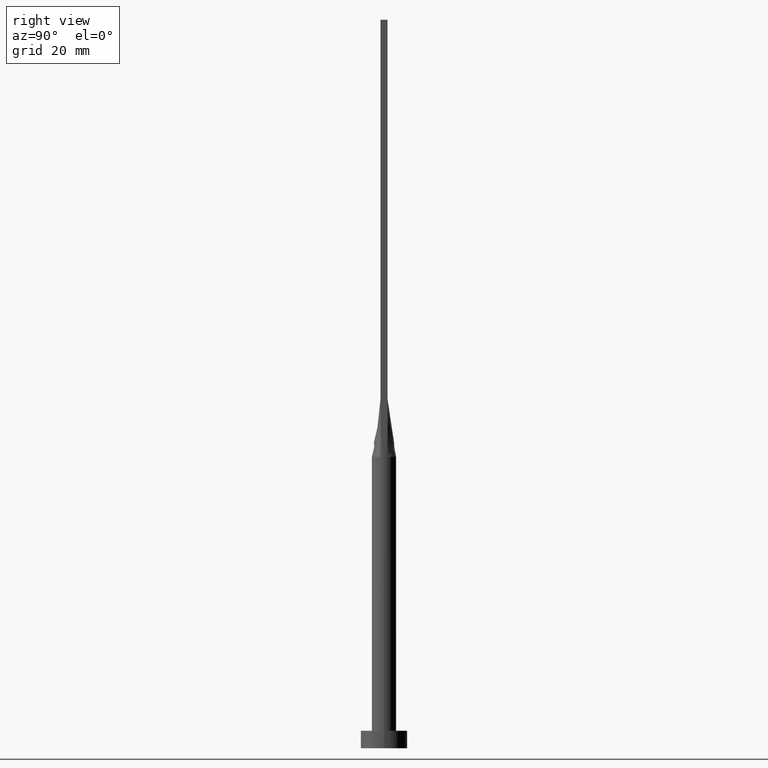
[diagram: clean part render]
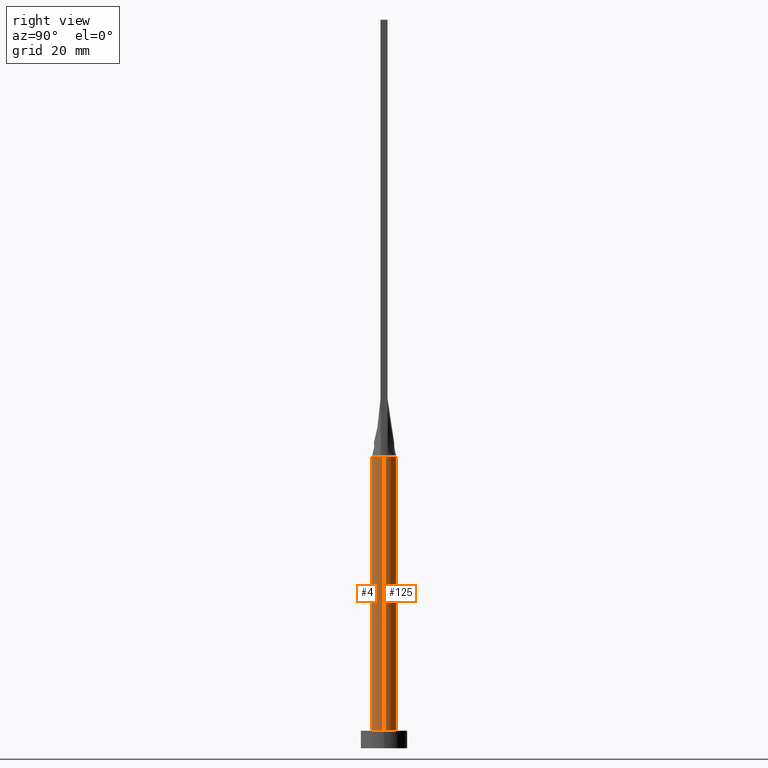
[diagram: same view with one multi-face feature highlighted, each face labeled with its STEP entity id]
A machine part, right view. The highlighted faces form ONE feature: a constant-radius fillet chain: 2 tangent blend faces with common blend radius 2.1 mm. The faces share edges in the B-rep.
Their STEP definitions:
[1] entity #125 (Cylinder):
#9 = CYLINDRICAL_SURFACE ( 'NONE', #352, 2.100000000000000089 ) ;
#24 = DIRECTION ( 'NONE',  ( 1.000000000000000000, 0.000000000000000000, 0.000000000000000000 ) ) ;
#35 = AXIS2_PLACEMENT_3D ( 'NONE', #220, #543, #396 ) ;
#55 = DIRECTION ( 'NONE',  ( 0.000000000000000000, 0.000000000000000000, 1.000000000000000000 ) ) ;
#66 = DIRECTION ( 'NONE',  ( 0.000000000000000000, 0.000000000000000000, 1.000000000000000000 ) ) ;
#79 = EDGE_CURVE ( 'NONE', #366, #359, #267, .T. ) ;
#90 = ORIENTED_EDGE ( 'NONE', *, *, #284, .T. ) ;
#94 = CARTESIAN_POINT ( 'NONE',  ( -0.9765948449220482885, 1.875594675604967509, 49.99999999999999289 ) ) ;
#120 = CARTESIAN_POINT ( 'NONE',  ( 1.878511276496548366, 0.9591670956957804028, 50.00000000000000000 ) ) ;
#125 = ADVANCED_FACE ( 'NONE', ( #513 ), #9, .T. ) ;
#130 = DIRECTION ( 'NONE',  ( -0.000000000000000000, -0.000000000000000000, -1.000000000000000000 ) ) ;
#133 = ORIENTED_EDGE ( 'NONE', *, *, #537, .F. ) ;
#136 = CARTESIAN_POINT ( 'NONE',  ( 0.2565105576742081062, 2.100000000000000533, 50.00000000000001421 ) ) ;
#137 = DIRECTION ( 'NONE',  ( -0.000000000000000000, -0.000000000000000000, -1.000000000000000000 ) ) ;
#141 = EDGE_CURVE ( 'NONE', #374, #366, #294, .T. ) ;
#144 = CARTESIAN_POINT ( 'NONE',  ( 2.100000000000000089, 2.571758278209441957E-16, 3.000000000000000000 ) ) ;
#145 = CIRCLE ( 'NONE', #171, 2.100000000000000089 ) ;
#148 = CARTESIAN_POINT ( 'NONE',  ( -2.100000000000000089, -1.284268198382905442E-16, 50.00000000000000000 ) ) ;
#155 = CARTESIAN_POINT ( 'NONE',  ( -1.952271707612931895, 0.7915068550356629817, 49.99999999999999289 ) ) ;
#158 = DIRECTION ( 'NONE',  ( 1.000000000000000000, 0.000000000000000000, 0.000000000000000000 ) ) ;
#164 = CARTESIAN_POINT ( 'NONE',  ( 0.9765948449220478444, 1.875594675604967065, 49.99999999999999289 ) ) ;
#170 = ORIENTED_EDGE ( 'NONE', *, *, #250, .F. ) ;
#171 = AXIS2_PLACEMENT_3D ( 'NONE', #367, #55, #158 ) ;
#179 = CARTESIAN_POINT ( 'NONE',  ( 2.100000000000000089, 2.571758278209441957E-16, 50.00000000000000000 ) ) ;
#194 = CARTESIAN_POINT ( 'NONE',  ( 0.000000000000000000, 0.000000000000000000, 50.00000000000000000 ) ) ;
#202 = CARTESIAN_POINT ( 'NONE',  ( -1.667357759214464830, 1.291791096182927534, 50.00000000000000000 ) ) ;
#204 = CARTESIAN_POINT ( 'NONE',  ( 1.529462611013499451, 1.456669187245239527, 50.00000000000000711 ) ) ;
#212 = CARTESIAN_POINT ( 'NONE',  ( 1.184262492297964098, 1.748903470433445628, 49.99999999999998579 ) ) ;
#217 = B_SPLINE_CURVE_WITH_KNOTS ( 'NONE', 3,
 ( #219, #310, #120, #459, #204, #212, #164, #533, #136, #234, #323, #94, #317, #471, #202, #519, #155, #391 ),
 .UNSPECIFIED., .F., .F.,
 ( 4, 2, 2, 2, 2, 2, 2, 2, 4 ),
 ( 0.000000000000000000, 0.1249999999999999167, 0.2499999999999998890, 0.3749999999999998335, 0.4999999999999998890, 0.6249999999999998890, 0.7499999999999998890, 0.8750000000000000000, 1.000000000000000000 ),
 .UNSPECIFIED. ) ;
#219 = CARTESIAN_POINT ( 'NONE',  ( 2.002598039528881380, 0.6323997261616642884, 50.00000000000000000 ) ) ;
#220 = CARTESIAN_POINT ( 'NONE',  ( 0.000000000000000000, 0.000000000000000000, 50.00000000000000000 ) ) ;
#234 = CARTESIAN_POINT ( 'NONE',  ( -0.2565105576742073845, 2.100000000000000533, 50.00000000000000711 ) ) ;
#248 = EDGE_LOOP ( 'NONE', ( #170, #90, #421, #535, #426, #133 ) ) ;
#250 = EDGE_CURVE ( 'NONE', #282, #545, #458, .T. ) ;
#251 = DIRECTION ( 'NONE',  ( -1.000000000000000000, 0.000000000000000000, 0.000000000000000000 ) ) ;
#267 = LINE ( 'NONE', #455, #279 ) ;
#279 = VECTOR ( 'NONE', #130, 1000.000000000000000 ) ;
#280 = CARTESIAN_POINT ( 'NONE',  ( 2.100000000000000089, 3.372022381799045987E-17, 50.00000000000000000 ) ) ;
#282 = VERTEX_POINT ( 'NONE', #280 ) ;
#284 = EDGE_CURVE ( 'NONE', #282, #286, #506, .T. ) ;
#286 = VERTEX_POINT ( 'NONE', #144 ) ;
#294 = CIRCLE ( 'NONE', #433, 2.100000000000000089 ) ;
#296 = CARTESIAN_POINT ( 'NONE',  ( 0.000000000000000000, 0.000000000000000000, 50.00000000000000000 ) ) ;
#310 = CARTESIAN_POINT ( 'NONE',  ( 1.952271707612931895, 0.7915068550356627597, 50.00000000000000711 ) ) ;
#317 = CARTESIAN_POINT ( 'NONE',  ( -1.184262492297963876, 1.748903470433446294, 50.00000000000000711 ) ) ;
#323 = CARTESIAN_POINT ( 'NONE',  ( -0.5124799074986362557, 2.051574327850739454, 50.00000000000000000 ) ) ;
#352 = AXIS2_PLACEMENT_3D ( 'NONE', #194, #137, #251 ) ;
#359 = VERTEX_POINT ( 'NONE', #475 ) ;
#361 = VECTOR ( 'NONE', #556, 1000.000000000000000 ) ;
#366 = VERTEX_POINT ( 'NONE', #148 ) ;
#367 = CARTESIAN_POINT ( 'NONE',  ( 0.000000000000000000, 0.000000000000000000, 3.000000000000000000 ) ) ;
#374 = VERTEX_POINT ( 'NONE', #521 ) ;
#391 = CARTESIAN_POINT ( 'NONE',  ( -2.002622288503867587, 0.6324075186587619912, 50.00000000000000000 ) ) ;
#396 = DIRECTION ( 'NONE',  ( 1.000000000000000000, 0.000000000000000000, 0.000000000000000000 ) ) ;
#419 = EDGE_CURVE ( 'NONE', #286, #359, #145, .T. ) ;
#421 = ORIENTED_EDGE ( 'NONE', *, *, #419, .T. ) ;
#426 = ORIENTED_EDGE ( 'NONE', *, *, #141, .F. ) ;
#433 = AXIS2_PLACEMENT_3D ( 'NONE', #296, #66, #24 ) ;
#455 = CARTESIAN_POINT ( 'NONE',  ( -2.100000000000000089, 0.000000000000000000, 50.00000000000000000 ) ) ;
#458 = CIRCLE ( 'NONE', #35, 2.100000000000000089 ) ;
#459 = CARTESIAN_POINT ( 'NONE',  ( 1.667357759214464608, 1.291791096182927090, 50.00000000000000000 ) ) ;
#471 = CARTESIAN_POINT ( 'NONE',  ( -1.529462611013499451, 1.456669187245239527, 50.00000000000000000 ) ) ;
#475 = CARTESIAN_POINT ( 'NONE',  ( -2.100000000000000089, 0.000000000000000000, 3.000000000000000000 ) ) ;
#506 = LINE ( 'NONE', #179, #361 ) ;
#513 = FACE_OUTER_BOUND ( 'NONE', #248, .T. ) ;
#519 = CARTESIAN_POINT ( 'NONE',  ( -1.878511276496549032, 0.9591670956957809580, 50.00000000000000711 ) ) ;
#521 = CARTESIAN_POINT ( 'NONE',  ( -2.002622288503867587, 0.6324075186587619912, 50.00000000000000000 ) ) ;
#533 = CARTESIAN_POINT ( 'NONE',  ( 0.5124799074986362557, 2.051574327850739454, 50.00000000000000711 ) ) ;
#535 = ORIENTED_EDGE ( 'NONE', *, *, #79, .F. ) ;
#537 = EDGE_CURVE ( 'NONE', #545, #374, #217, .T. ) ;
#543 = DIRECTION ( 'NONE',  ( 0.000000000000000000, 0.000000000000000000, 1.000000000000000000 ) ) ;
#545 = VERTEX_POINT ( 'NONE', #571 ) ;
#556 = DIRECTION ( 'NONE',  ( -0.000000000000000000, -0.000000000000000000, -1.000000000000000000 ) ) ;
#571 = CARTESIAN_POINT ( 'NONE',  ( 2.002598039528881380, 0.6323997261616642884, 50.00000000000000000 ) ) ;
[2] entity #4 (Cylinder):
#4 = ADVANCED_FACE ( 'NONE', ( #68 ), #58, .T. ) ;
#13 = AXIS2_PLACEMENT_3D ( 'NONE', #572, #199, #297 ) ;
#45 = CIRCLE ( 'NONE', #394, 2.100000000000000089 ) ;
#52 = DIRECTION ( 'NONE',  ( 1.000000000000000000, -1.776356839400250465E-15, 0.000000000000000000 ) ) ;
#57 = DIRECTION ( 'NONE',  ( 1.000000000000000000, 0.000000000000000000, 0.000000000000000000 ) ) ;
#58 = CYLINDRICAL_SURFACE ( 'NONE', #208, 2.100000000000000089 ) ;
#68 = FACE_OUTER_BOUND ( 'NONE', #473, .T. ) ;
#79 = EDGE_CURVE ( 'NONE', #366, #359, #267, .T. ) ;
#89 = EDGE_CURVE ( 'NONE', #359, #286, #463, .T. ) ;
#116 = EDGE_CURVE ( 'NONE', #328, #282, #395, .T. ) ;
#130 = DIRECTION ( 'NONE',  ( -0.000000000000000000, -0.000000000000000000, -1.000000000000000000 ) ) ;
#138 = VERTEX_POINT ( 'NONE', #553 ) ;
#142 = DIRECTION ( 'NONE',  ( 0.000000000000000000, 0.000000000000000000, 1.000000000000000000 ) ) ;
#144 = CARTESIAN_POINT ( 'NONE',  ( 2.100000000000000089, 2.571758278209441957E-16, 3.000000000000000000 ) ) ;
#146 = EDGE_CURVE ( 'NONE', #138, #328, #378, .T. ) ;
#148 = CARTESIAN_POINT ( 'NONE',  ( -2.100000000000000089, -1.284268198382905442E-16, 50.00000000000000000 ) ) ;
#154 = DIRECTION ( 'NONE',  ( -1.000000000000000000, 0.000000000000000000, 0.000000000000000000 ) ) ;
#179 = CARTESIAN_POINT ( 'NONE',  ( 2.100000000000000089, 2.571758278209441957E-16, 50.00000000000000000 ) ) ;
#192 = CARTESIAN_POINT ( 'NONE',  ( 2.002626276893244128, -0.6324088233005202841, 50.00000000000000000 ) ) ;
#199 = DIRECTION ( 'NONE',  ( 0.000000000000000000, 0.000000000000000000, 1.000000000000000000 ) ) ;
#208 = AXIS2_PLACEMENT_3D ( 'NONE', #209, #389, #154 ) ;
#209 = CARTESIAN_POINT ( 'NONE',  ( 0.000000000000000000, 0.000000000000000000, 50.00000000000000000 ) ) ;
#238 = ORIENTED_EDGE ( 'NONE', *, *, #284, .F. ) ;
#240 = AXIS2_PLACEMENT_3D ( 'NONE', #382, #142, #57 ) ;
#242 = ORIENTED_EDGE ( 'NONE', *, *, #116, .F. ) ;
#267 = LINE ( 'NONE', #455, #279 ) ;
#279 = VECTOR ( 'NONE', #130, 1000.000000000000000 ) ;
#280 = CARTESIAN_POINT ( 'NONE',  ( 2.100000000000000089, 3.372022381799045987E-17, 50.00000000000000000 ) ) ;
#282 = VERTEX_POINT ( 'NONE', #280 ) ;
#284 = EDGE_CURVE ( 'NONE', #282, #286, #506, .T. ) ;
#286 = VERTEX_POINT ( 'NONE', #144 ) ;
#297 = DIRECTION ( 'NONE',  ( 1.000000000000000000, 0.000000000000000000, 0.000000000000000000 ) ) ;
#308 = EDGE_CURVE ( 'NONE', #366, #138, #45, .T. ) ;
#322 = DIRECTION ( 'NONE',  ( 0.000000000000000000, 0.000000000000000000, 1.000000000000000000 ) ) ;
#328 = VERTEX_POINT ( 'NONE', #192 ) ;
#359 = VERTEX_POINT ( 'NONE', #475 ) ;
#361 = VECTOR ( 'NONE', #556, 1000.000000000000000 ) ;
#366 = VERTEX_POINT ( 'NONE', #148 ) ;
#371 = ORIENTED_EDGE ( 'NONE', *, *, #79, .T. ) ;
#378 = CIRCLE ( 'NONE', #13, 2.100000000000000089 ) ;
#379 = DIRECTION ( 'NONE',  ( 1.000000000000000000, 0.000000000000000000, 0.000000000000000000 ) ) ;
#382 = CARTESIAN_POINT ( 'NONE',  ( 0.000000000000000000, 0.000000000000000000, 3.000000000000000000 ) ) ;
#389 = DIRECTION ( 'NONE',  ( -0.000000000000000000, -0.000000000000000000, -1.000000000000000000 ) ) ;
#394 = AXIS2_PLACEMENT_3D ( 'NONE', #438, #482, #379 ) ;
#395 = CIRCLE ( 'NONE', #501, 2.100000000000000089 ) ;
#418 = CARTESIAN_POINT ( 'NONE',  ( 0.000000000000000000, 0.000000000000000000, 50.00000000000000000 ) ) ;
#420 = ORIENTED_EDGE ( 'NONE', *, *, #308, .F. ) ;
#438 = CARTESIAN_POINT ( 'NONE',  ( 0.000000000000000000, 0.000000000000000000, 50.00000000000000000 ) ) ;
#450 = ORIENTED_EDGE ( 'NONE', *, *, #146, .F. ) ;
#455 = CARTESIAN_POINT ( 'NONE',  ( -2.100000000000000089, 0.000000000000000000, 50.00000000000000000 ) ) ;
#463 = CIRCLE ( 'NONE', #240, 2.100000000000000089 ) ;
#473 = EDGE_LOOP ( 'NONE', ( #238, #242, #450, #420, #371, #485 ) ) ;
#475 = CARTESIAN_POINT ( 'NONE',  ( -2.100000000000000089, 0.000000000000000000, 3.000000000000000000 ) ) ;
#482 = DIRECTION ( 'NONE',  ( 0.000000000000000000, 0.000000000000000000, 1.000000000000000000 ) ) ;
#485 = ORIENTED_EDGE ( 'NONE', *, *, #89, .T. ) ;
#501 = AXIS2_PLACEMENT_3D ( 'NONE', #418, #322, #52 ) ;
#506 = LINE ( 'NONE', #179, #361 ) ;
#553 = CARTESIAN_POINT ( 'NONE',  ( -2.002601997802567535, -0.6324010168594718095, 50.00000000000000000 ) ) ;
#556 = DIRECTION ( 'NONE',  ( -0.000000000000000000, -0.000000000000000000, -1.000000000000000000 ) ) ;
#572 = CARTESIAN_POINT ( 'NONE',  ( 0.000000000000000000, 0.000000000000000000, 50.00000000000000000 ) ) ;